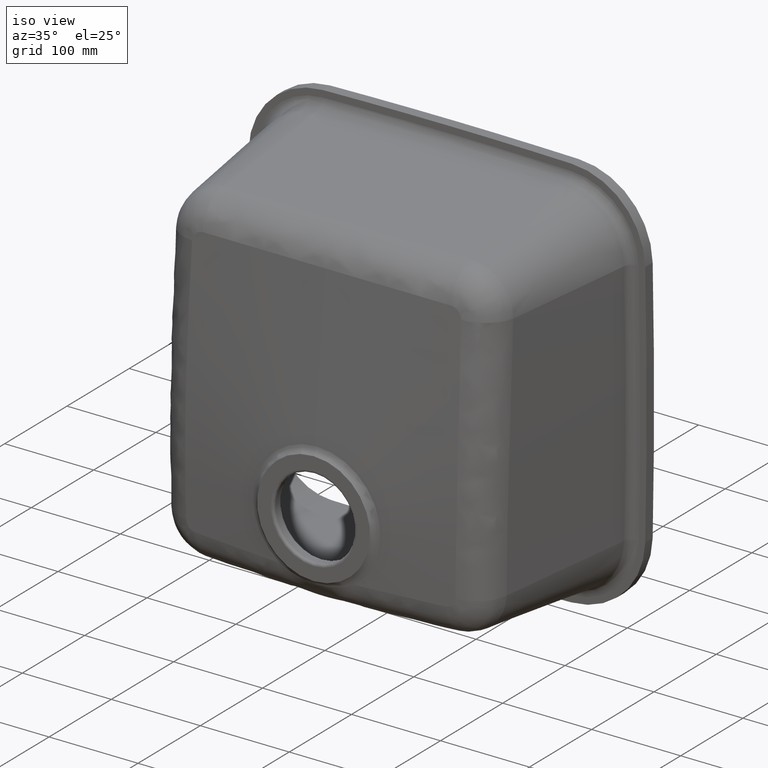
[diagram: clean part render]
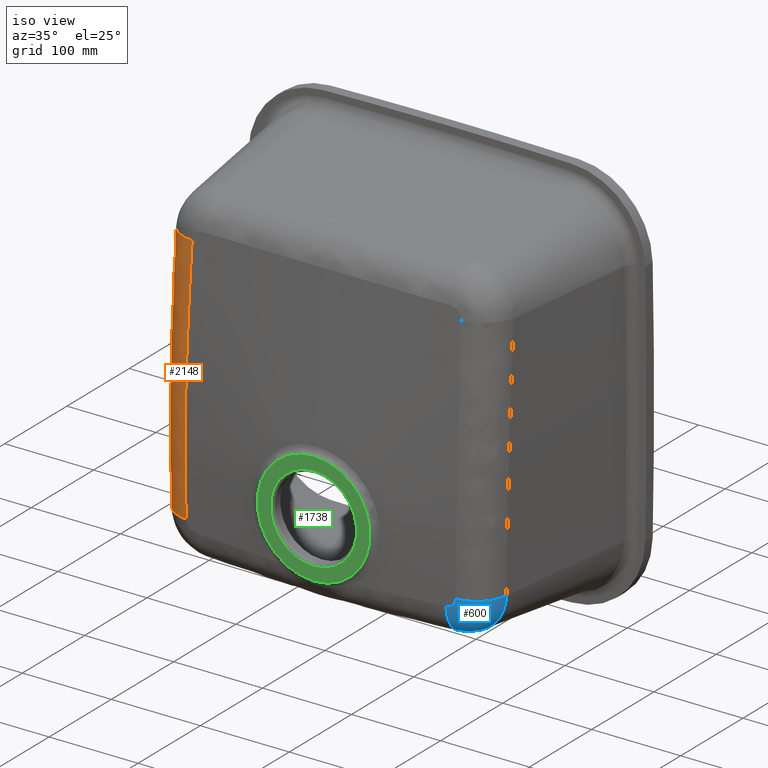
[diagram: same view with three faces highlighted in distinct colors, each labeled with its STEP entity id]
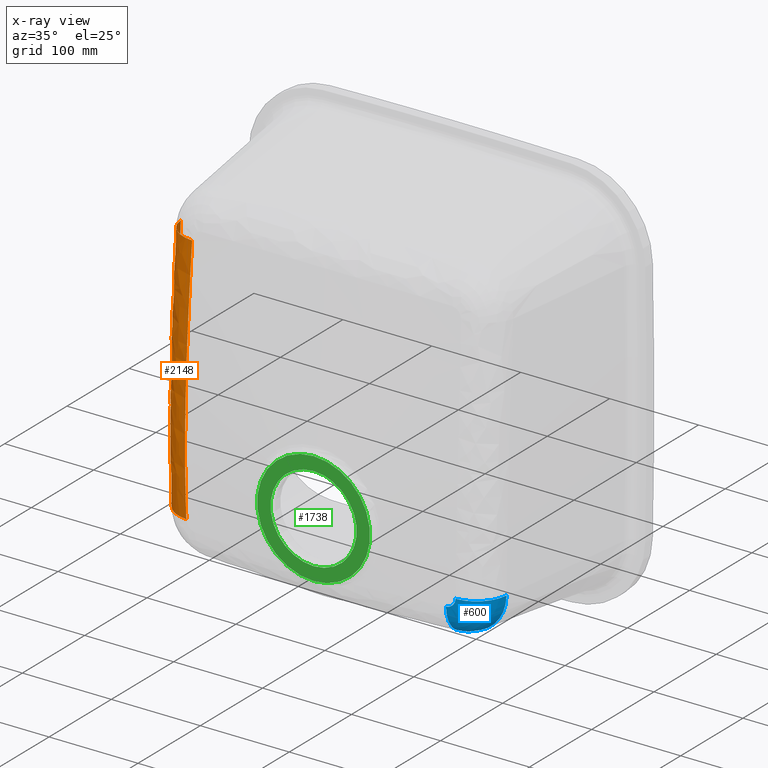
[diagram: x-ray of the same camera — body ghosted, the three highlighted faces saturated]
A machine part, iso view with three faces highlighted in distinct colors.
The next image is the same camera in x-ray (body ghosted, the three faces saturated) — at least one of them is partly hidden behind the body in this view.
Their STEP definitions:

[orange] entity #2148 — the highlighted face is a freeform B-spline surface patch.
#32 = CARTESIAN_POINT ( 'NONE',  ( -187.5743563083845200, 30.92775266842612300, 58.00879503683518800 ) ) ;
#48 = CARTESIAN_POINT ( 'NONE',  ( -183.7364447148914900, -0.2010617738536358800, 59.69597228035703300 ) ) ;
#55 = EDGE_CURVE ( 'NONE', #87, #2864, #3984, .T. ) ;
#62 = CARTESIAN_POINT ( 'NONE',  ( -183.7800137978819400, -1.774487397875437000, 24.73494431222878000 ) ) ;
#75 = CARTESIAN_POINT ( 'NONE',  ( -185.7389261621613600, 26.49171849676487500, -139.0273990174659100 ) ) ;
#87 = VERTEX_POINT ( 'NONE', #3403 ) ;
#111 = CARTESIAN_POINT ( 'NONE',  ( -187.5958677239214900, 30.31310923383868800, 46.42568339508223100 ) ) ;
#181 = EDGE_CURVE ( 'NONE', #3350, #87, #3826, .T. ) ;
#208 = EDGE_CURVE ( 'NONE', #1592, #2864, #2088, .T. ) ;
#238 = CARTESIAN_POINT ( 'NONE',  ( -182.8131256283199900, -4.454935792076641500, -92.53283628857678900 ) ) ;
#265 = CARTESIAN_POINT ( 'NONE',  ( -152.6806248011391200, -4.212458305339382900, 12.52530135758608900 ) ) ;
#288 = AXIS2_PLACEMENT_3D ( 'NONE', #1827, #4246, #3522 ) ;
#343 = CARTESIAN_POINT ( 'NONE',  ( -187.3547024027219000, 27.28998497724840900, -23.09639832334158900 ) ) ;
#360 = CARTESIAN_POINT ( 'NONE',  ( -187.0172036793991000, 26.37936773936181500, -57.86690492891452200 ) ) ;
#374 = CARTESIAN_POINT ( 'NONE',  ( -182.9640320669879300, 4.255976342103181800, 141.0011884517617200 ) ) ;
#386 = CARTESIAN_POINT ( 'NONE',  ( -186.8734489418232300, 35.73396161689549900, 139.0526955222250400 ) ) ;
#387 = DIRECTION ( 'NONE',  ( 0.0000000000000000000, -0.9979774490001981400, 0.06356894907938079300 ) ) ;
#395 = EDGE_LOOP ( 'NONE', ( #3558, #2527, #3212, #1463 ) ) ;
#429 = CARTESIAN_POINT ( 'NONE',  ( -182.2126006371083800, -4.261872752605792200, -127.8379817361188300 ) ) ;
#598 = CARTESIAN_POINT ( 'NONE',  ( -151.2683056474305400, -6.328805989477048800, -139.0224539532255500 ) ) ;
#670 = CARTESIAN_POINT ( 'NONE',  ( -187.4371811075902200, 27.69991734189614600, -11.50754730858637100 ) ) ;
#688 = CARTESIAN_POINT ( 'NONE',  ( -182.4283369080811200, -4.381096767862240800, -116.0672225511580700 ) ) ;
#693 = CARTESIAN_POINT ( 'NONE',  ( -183.3185671683494300, 2.874408283591764100, 117.8292420611823800 ) ) ;
#720 = CARTESIAN_POINT ( 'NONE',  ( -152.3630182668679300, -6.747888568608559900, -80.31722149993200300 ) ) ;
#736 = CARTESIAN_POINT ( 'NONE',  ( -187.1651366426326300, 26.53271523572930900, -46.27562477362150200 ) ) ;
#782 = CARTESIAN_POINT ( 'NONE',  ( -185.7389261621613100, 26.49171849676472900, -139.0273990174659100 ) ) ;
#798 = CARTESIAN_POINT ( 'NONE',  ( -181.9736138512943200, -4.065848008553684800, -139.5827359860888900 ) ) ;
#929 = CARTESIAN_POINT ( 'NONE',  ( -152.6289107257505000, -3.684147520991278800, 24.17923614360799100 ) ) ;
#943 = CARTESIAN_POINT ( 'NONE',  ( -152.6971077604123400, -6.301229511499257400, -45.74765434941471700 ) ) ;
#961 = CARTESIAN_POINT ( 'NONE',  ( -152.4774252376757000, -2.539646597831454000, 47.48017773236706800 ) ) ;
#1026 = CARTESIAN_POINT ( 'NONE',  ( -187.2095931622706100, 34.26819533472843900, 115.9033303767490400 ) ) ;
#1059 = CARTESIAN_POINT ( 'NONE',  ( -152.7294696076304800, -5.120607145268917500, -10.05974602956873900 ) ) ;
#1075 = CARTESIAN_POINT ( 'NONE',  ( -187.5848191194270400, 29.16907028972481100, 23.25695818822280000 ) ) ;
#1088 = CARTESIAN_POINT ( 'NONE',  ( -152.6579275067920800, -6.191098638054874000, -45.12863437879263300 ) ) ;
#1089 = DIRECTION ( 'NONE',  ( 0.01444321526507258100, 0.06356231828661060300, 0.9978733512960642500 ) ) ;
#1177 = B_SPLINE_CURVE_WITH_KNOTS ( 'NONE', 3,
 ( #4235, #1452, #2197, #3587, #4268, #736, #1476, #2904, #4223, #111, #3605, #2149, #1512, #2554 ),
 .UNSPECIFIED., .F., .F.,
 ( 4, 2, 2, 2, 2, 2, 4 ),
 ( 2.775557561562891400E-017, 0.03478186259173634400, 0.06956372518347266100, 0.1391274503669452700, 0.1739093129586815600, 0.2086911755504178300, 0.2782549007338903600 ),
 .UNSPECIFIED. ) ;
#1378 = CARTESIAN_POINT ( 'NONE',  ( -151.8029112023708600, -6.713211101419538800, -115.5563067198825700 ) ) ;
#1416 = CARTESIAN_POINT ( 'NONE',  ( -152.6779379064003000, -4.180962448037579500, 13.24589223165976100 ) ) ;
#1449 = CARTESIAN_POINT ( 'NONE',  ( -152.4724379116275900, -2.507369635751243800, 48.10238498532071100 ) ) ;
#1452 = CARTESIAN_POINT ( 'NONE',  ( -185.9683295692103400, 26.25413911844606600, -127.4302683493881100 ) ) ;
#1463 = ORIENTED_EDGE ( 'NONE', *, *, #4183, .F. ) ;
#1476 = CARTESIAN_POINT ( 'NONE',  ( -187.3796368636937800, 27.23006467124789200, -23.09665544798698600 ) ) ;
#1512 = CARTESIAN_POINT ( 'NONE',  ( -187.2095976757685800, 34.26817564856080600, 115.9030195168871600 ) ) ;
#1592 = VERTEX_POINT ( 'NONE', #75 ) ;
#1617 = CARTESIAN_POINT ( 'NONE',  ( -186.1764909639109100, 26.10731338428752600, -115.8340165197113000 ) ) ;
#1754 = AXIS2_PLACEMENT_3D ( 'NONE', #3158, #1089, #387 ) ;
#1765 = CARTESIAN_POINT ( 'NONE',  ( -152.5882724053306800, -6.441156746817031700, -56.84859302358181300 ) ) ;
#1777 = CARTESIAN_POINT ( 'NONE',  ( -183.3955716036311700, -3.953092866487901700, -45.49276420308802200 ) ) ;
#1827 = CARTESIAN_POINT ( 'NONE',  ( -148.5276942605364100, 31.06181887445777800, -138.1976985285541300 ) ) ;
#1836 = FACE_OUTER_BOUND ( 'NONE', #395, .T. ) ;
#1991 = CARTESIAN_POINT ( 'NONE',  ( -152.7545447943735400, -5.614507896651272900, -22.43675179534394800 ) ) ;
#2005 = CARTESIAN_POINT ( 'NONE',  ( -152.0062002441218600, 0.01856854072489701200, 94.06499091651615200 ) ) ;
#2088 = CIRCLE ( 'NONE', #288, 37.50000000000000000 ) ;
#2103 = CARTESIAN_POINT ( 'NONE',  ( -152.3721762029246100, -1.892771817181423000, 59.69589668044825700 ) ) ;
#2118 = CARTESIAN_POINT ( 'NONE',  ( -183.7690592489700200, -0.7555146611363207100, 48.05350196386076100 ) ) ;
#2144 = CARTESIAN_POINT ( 'NONE',  ( -152.6252590786091600, -3.651454196842216100, 24.87782859227187500 ) ) ;
#2148 = ADVANCED_FACE ( 'NONE', ( #1836 ), #2601, .T. ) ;
#2149 = CARTESIAN_POINT ( 'NONE',  ( -187.4241948071610900, 32.86151570701255100, 92.74934229242889200 ) ) ;
#2197 = CARTESIAN_POINT ( 'NONE',  ( -186.1764860072787000, 26.10731672528270100, -115.8342941050229900 ) ) ;
#2345 = CARTESIAN_POINT ( 'NONE',  ( -185.9683327412899700, 26.25413583470856700, -127.4301079975087600 ) ) ;
#2450 = CARTESIAN_POINT ( 'NONE',  ( -187.5958667266063200, 30.31315485016529400, 46.42656147247209500 ) ) ;
#2466 = CARTESIAN_POINT ( 'NONE',  ( -151.2149939643871600, 2.913437130653715000, 140.6271697582875500 ) ) ;
#2486 = CARTESIAN_POINT ( 'NONE',  ( -187.4241899967510400, 32.86154938228791200, 92.74990128849590600 ) ) ;
#2527 = ORIENTED_EDGE ( 'NONE', *, *, #55, .F. ) ;
#2529 = CARTESIAN_POINT ( 'NONE',  ( -151.5552099144104800, -6.566383347283114300, -127.2984219872917200 ) ) ;
#2545 = CARTESIAN_POINT ( 'NONE',  ( -151.2683056474305100, -6.328805989477052300, -139.0224539532255200 ) ) ;
#2554 = CARTESIAN_POINT ( 'NONE',  ( -186.8734489418234300, 35.73396161689565500, 139.0526955222250400 ) ) ;
#2601 =( BOUNDED_SURFACE ( )  B_SPLINE_SURFACE ( 3, 2, ( 
 ( #2545, #798, #782 ),
 ( #2529, #429, #2345 ),
 ( #1378, #688, #1617 ),
 ( #2672, #238, #4174 ),
 ( #720, #2826, #3535 ),
 ( #1765, #4497, #360 ),
 ( #1088, #1777, #2773 ),
 ( #3865, #3122, #343 ),
 ( #1059, #2810, #670 ),
 ( #1416, #3505, #4188 ),
 ( #2144, #62, #1075 ),
 ( #1449, #2118, #2450 ),
 ( #2103, #48, #32 ),
 ( #3849, #2791, #2486 ),
 ( #3139, #693, #1026 ),
 ( #2466, #374, #386 ) ),
 .UNSPECIFIED., .F., .F., .F. ) 
 B_SPLINE_SURFACE_WITH_KNOTS ( ( 4, 2, 2, 2, 2, 2, 2, 4 ),
 ( 3, 3 ),
 ( -2.775557561562891400E-017, 0.03457455127938133900, 0.06914910255876270700, 0.1037236538381440800, 0.1382982051175254400, 0.1728727563969068000, 0.2074473076762881900, 0.2765964102350509400 ),
 ( 0.0000000000000000000, 1.000000000000000000 ),
 .UNSPECIFIED. ) 
 GEOMETRIC_REPRESENTATION_ITEM ( )  RATIONAL_B_SPLINE_SURFACE ( (
 ( 1.000000000000000000, 0.7728262095076760000, 1.000000000000000000),
 ( 1.000000000000000000, 0.7732841320742937000, 1.000000000000000000),
 ( 1.000000000000000000, 0.7735880053117538700, 1.000000000000000000),
 ( 1.000000000000000000, 0.7737755962668275700, 1.000000000000000000),
 ( 1.000000000000000000, 0.7736555283987307500, 1.000000000000000000),
 ( 1.000000000000000000, 0.7730398187134872600, 1.000000000000000000),
 ( 1.000000000000000000, 0.7725488966003883900, 1.000000000000000000),
 ( 1.000000000000000000, 0.7713757871157800300, 1.000000000000000000),
 ( 1.000000000000000000, 0.7706973017914157100, 1.000000000000000000),
 ( 1.000000000000000000, 0.7693139138124344100, 1.000000000000000000),
 ( 1.000000000000000000, 0.7686091502504927000, 1.000000000000000000),
 ( 1.000000000000000000, 0.7672588517195023700, 1.000000000000000000),
 ( 1.000000000000000000, 0.7666122715457474000, 1.000000000000000000),
 ( 1.000000000000000000, 0.7648020810281736000, 1.000000000000000000),
 ( 1.000000000000000000, 0.7637680188626687600, 1.000000000000000000),
 ( 1.000000000000000000, 0.7628960950891331400, 1.000000000000000000) ) ) 
 REPRESENTATION_ITEM ( '' )  SURFACE ( )  );
#2672 = CARTESIAN_POINT ( 'NONE',  ( -152.2069118035764500, -6.804046946961730000, -92.06542262718187400 ) ) ;
#2686 = CARTESIAN_POINT ( 'NONE',  ( -151.6630723743481300, 1.435248066217450500, 117.3484213295014500 ) ) ;
#2773 = CARTESIAN_POINT ( 'NONE',  ( -187.1446788779121800, 26.62942584848183000, -46.27607227657062300 ) ) ;
#2791 = CARTESIAN_POINT ( 'NONE',  ( -183.5537754736070300, 1.565136499321991400, 94.62005438506180600 ) ) ;
#2810 = CARTESIAN_POINT ( 'NONE',  ( -183.6637306277731100, -3.051534308648294700, -10.32556639709192600 ) ) ;
#2826 = CARTESIAN_POINT ( 'NONE',  ( -182.9823711116270600, -4.409594269142340700, -80.75799211899909800 ) ) ;
#2864 = VERTEX_POINT ( 'NONE', #4097 ) ;
#2904 = CARTESIAN_POINT ( 'NONE',  ( -187.5522519168529000, 28.63952063650758400, 11.66791444853999200 ) ) ;
#3030 = CARTESIAN_POINT ( 'NONE',  ( -151.2149939643872800, 2.913437130653739000, 140.6271697582875500 ) ) ;
#3122 = CARTESIAN_POINT ( 'NONE',  ( -183.5906783622512000, -3.399535735787674100, -22.03706542761487000 ) ) ;
#3139 = CARTESIAN_POINT ( 'NONE',  ( -151.6593170097199600, 1.447636876355449900, 117.5435222059249300 ) ) ;
#3158 = CARTESIAN_POINT ( 'NONE',  ( -149.6622170401985000, 40.30406199458861500, 138.2229950333132500 ) ) ;
#3212 = ORIENTED_EDGE ( 'NONE', *, *, #181, .F. ) ;
#3350 = VERTEX_POINT ( 'NONE', #4464 ) ;
#3377 = CARTESIAN_POINT ( 'NONE',  ( -152.3775399498863100, -1.923462374837511500, 59.12790179550104600 ) ) ;
#3403 = CARTESIAN_POINT ( 'NONE',  ( -151.2149939643872800, 2.913437130653739000, 140.6271697582875500 ) ) ;
#3404 = CARTESIAN_POINT ( 'NONE',  ( -152.3579662446025500, -6.750501160783591600, -80.72069703362953400 ) ) ;
#3505 = CARTESIAN_POINT ( 'NONE',  ( -183.7584496585127200, -2.239035722097859600, 13.05938897455788200 ) ) ;
#3522 = DIRECTION ( 'NONE',  ( 0.0000000000000000000, -0.9997877014874190200, -0.02060465856313624000 ) ) ;
#3535 = CARTESIAN_POINT ( 'NONE',  ( -186.7213198019796900, 26.07263591769615700, -81.05112187286850700 ) ) ;
#3558 = ORIENTED_EDGE ( 'NONE', *, *, #208, .T. ) ;
#3587 = CARTESIAN_POINT ( 'NONE',  ( -186.5529661916856100, 26.01647726023540100, -92.64501889409999100 ) ) ;
#3605 = CARTESIAN_POINT ( 'NONE',  ( -187.5743586323667400, 30.92770860434452000, 58.00798042027649600 ) ) ;
#3733 = CARTESIAN_POINT ( 'NONE',  ( -152.2020860851561700, -6.804111071494834700, -92.37947688097362700 ) ) ;
#3826 = CIRCLE ( 'NONE', #1754, 37.49999999999999300 ) ;
#3849 = CARTESIAN_POINT ( 'NONE',  ( -152.0008634462450300, 0.04102489477764452400, 94.43617848404925000 ) ) ;
#3865 = CARTESIAN_POINT ( 'NONE',  ( -152.7283337227174200, -5.530539508698449700, -21.73434652539342300 ) ) ;
#3984 = B_SPLINE_CURVE_WITH_KNOTS ( 'NONE', 3,
 ( #3030, #2686, #2005, #3377, #961, #929, #265, #1991, #943, #3404, #3733, #4069, #4411, #598 ),
 .UNSPECIFIED., .F., .F.,
 ( 4, 2, 2, 2, 2, 2, 4 ),
 ( 0.0000000000000000000, 0.06998593435459037100, 0.1049789015318855500, 0.1399718687091807400, 0.2099578030637711000, 0.2449507702410662900, 0.2799437374183614800 ),
 .UNSPECIFIED. ) ;
#4069 = CARTESIAN_POINT ( 'NONE',  ( -151.7998649641994600, -6.711354292948883000, -115.6993103131889900 ) ) ;
#4097 = CARTESIAN_POINT ( 'NONE',  ( -151.2683056474305400, -6.328805989477048800, -139.0224539532255500 ) ) ;
#4174 = CARTESIAN_POINT ( 'NONE',  ( -186.5529739232569000, 26.01647753981477300, -92.64451494933011600 ) ) ;
#4183 = EDGE_CURVE ( 'NONE', #1592, #3350, #1177, .T. ) ;
#4188 = CARTESIAN_POINT ( 'NONE',  ( -187.5522552600531600, 28.63956203728092100, 11.66885643031063700 ) ) ;
#4223 = CARTESIAN_POINT ( 'NONE',  ( -187.5848172525910200, 29.16902587040599600, 23.25601289138160900 ) ) ;
#4235 = CARTESIAN_POINT ( 'NONE',  ( -185.7389261621613600, 26.49171849676487500, -139.0273990174659100 ) ) ;
#4246 = DIRECTION ( 'NONE',  ( -0.01975789036449615900, -0.02060063640668372000, 0.9995925367608464700 ) ) ;
#4268 = CARTESIAN_POINT ( 'NONE',  ( -186.7213113599878800, 26.07263172135678900, -81.05172083112344700 ) ) ;
#4411 = CARTESIAN_POINT ( 'NONE',  ( -151.5536941148482400, -6.565128162117776600, -127.3603632291004100 ) ) ;
#4464 = CARTESIAN_POINT ( 'NONE',  ( -186.8734489418234300, 35.73396161689565500, 139.0526955222250400 ) ) ;
#4497 = CARTESIAN_POINT ( 'NONE',  ( -183.2735482278163800, -4.158721596000289000, -57.24294477871342900 ) ) ;

[blue] entity #600 — the highlighted face is a freeform B-spline surface patch.
#27 = CARTESIAN_POINT ( 'NONE',  ( 151.2683056474308800, -6.328805989477025700, -139.0224539532254900 ) ) ;
#118 = VERTEX_POINT ( 'NONE', #4001 ) ;
#140 = CARTESIAN_POINT ( 'NONE',  ( 147.1624418302816900, -6.427492143514398600, -147.2796317869448000 ) ) ;
#145 = CARTESIAN_POINT ( 'NONE',  ( 151.1246397599709900, 26.18329368310872200, -183.9652786392965100 ) ) ;
#163 = CARTESIAN_POINT ( 'NONE',  ( 149.2408713494971300, -6.333838078750144300, -145.0839003470732400 ) ) ;
#175 = CARTESIAN_POINT ( 'NONE',  ( 158.1009491983684000, -4.836693624636404300, -177.0772843713706900 ) ) ;
#191 = CARTESIAN_POINT ( 'NONE',  ( 177.5187652646397700, -3.980589290387849000, -157.5225993412894400 ) ) ;
#204 = CARTESIAN_POINT ( 'NONE',  ( 179.5374803937040400, -3.953279097606862800, -152.5808142649231300 ) ) ;
#274 = CARTESIAN_POINT ( 'NONE',  ( 176.7244814873724300, 26.48660804962851100, -165.9526813519674400 ) ) ;
#291 = CARTESIAN_POINT ( 'NONE',  ( 145.1202499054627100, 26.09652534142221100, -185.2618825369675300 ) ) ;
#462 = CARTESIAN_POINT ( 'NONE',  ( 149.8230681759375200, -6.313312571174688700, -144.2135438303310200 ) ) ;
#476 = CARTESIAN_POINT ( 'NONE',  ( 151.2683056474308800, -6.328805989477025700, -139.0224539532254900 ) ) ;
#479 = CARTESIAN_POINT ( 'NONE',  ( 146.6603305738403000, -5.519780794444366200, -181.0889391745261600 ) ) ;
#481 = EDGE_CURVE ( 'NONE', #118, #1097, #1434, .T. ) ;
#495 = CARTESIAN_POINT ( 'NONE',  ( 172.8514085927189100, 26.45076291681558100, -170.6470963884739300 ) ) ;
#511 = CARTESIAN_POINT ( 'NONE',  ( 151.9418954592840700, -5.191612142132978400, -179.7100288982281000 ) ) ;
#525 = CARTESIAN_POINT ( 'NONE',  ( 179.2754349464340700, 26.50683344006023000, -162.1760019427872000 ) ) ;
#535 = CARTESIAN_POINT ( 'NONE',  ( 182.5137687807096500, 26.52244597655875000, -155.3282464465422100 ) ) ;
#593 = CARTESIAN_POINT ( 'NONE',  ( 185.3143174809506800, 26.51493669318370600, -145.0990484168896400 ) ) ;
#600 = ADVANCED_FACE ( 'NONE', ( #1094 ), #780, .T. ) ;
#626 = CARTESIAN_POINT ( 'NONE',  ( 142.0894767665914200, 26.05103389793175600, -185.6165281649900000 ) ) ;
#673 = CARTESIAN_POINT ( 'NONE',  ( 139.0260622341128600, 26.00331597425118000, -185.6789727741995600 ) ) ;
#780 =( BOUNDED_SURFACE ( )  B_SPLINE_SURFACE ( 3, 2, ( 
 ( #1830, #4251, #3588 ),
 ( #1497, #3924, #1859 ),
 ( #3298, #837, #3283 ),
 ( #4352, #1187, #1923 ),
 ( #1200, #3633, #4344 ),
 ( #2283, #204, #1544 ),
 ( #1575, #2633, #535 ),
 ( #3971, #191, #2271 ),
 ( #2622, #1892, #525 ),
 ( #163, #2996, #2231 ),
 ( #2979, #4318, #2241 ),
 ( #892, #1939, #4002 ),
 ( #1225, #2597, #495 ),
 ( #2954, #1237, #3676 ),
 ( #877, #3650, #1561 ),
 ( #3336, #852, #3983 ),
 ( #1585, #3693, #1912 ),
 ( #3324, #1596, #4330 ),
 ( #4014, #175, #2967 ),
 ( #2257, #2614, #4025 ),
 ( #1954, #511, #145 ),
 ( #2582, #479, #866 ),
 ( #2938, #3314, #1211 ),
 ( #3662, #1281, #4084 ) ),
 .UNSPECIFIED., .F., .F., .T. ) 
 B_SPLINE_SURFACE_WITH_KNOTS ( ( 4, 2, 2, 2, 2, 2, 2, 2, 2, 2, 2, 4 ),
 ( 3, 3 ),
 ( -4.202367620553815200E-016, 0.002003958670319044300, 0.003005938005478776400, 0.004007917340638508400, 0.006011876010957972600, 0.007013855346117705100, 0.008015834681277436700, 0.01001979335159690000, 0.01102177268675663300, 0.01202375202191636500, 0.01402771069223583000, 0.01603166936255529300 ),
 ( 0.0000000000000000000, 1.000000000000000000 ),
 .UNSPECIFIED. ) 
 GEOMETRIC_REPRESENTATION_ITEM ( )  RATIONAL_B_SPLINE_SURFACE ( (
 ( 1.000000000000000000, 0.7728262095076758900, 1.000000000000000000),
 ( 1.000000000000000000, 0.7732172026876356100, 1.000000000000000000),
 ( 1.000000000000000000, 0.7734761745786833400, 1.000000000000000000),
 ( 1.000000000000000000, 0.7736757888055396700, 1.000000000000000000),
 ( 1.000000000000000000, 0.7737107233793617500, 1.000000000000000000),
 ( 1.000000000000000000, 0.7737162146931487700, 1.000000000000000000),
 ( 1.000000000000000000, 0.7736862508611807000, 1.000000000000000000),
 ( 1.000000000000000000, 0.7735002001252162500, 1.000000000000000000),
 ( 1.000000000000000000, 0.7732500690042110000, 1.000000000000000000),
 ( 1.000000000000000000, 0.7726851049207573700, 1.000000000000000000),
 ( 1.000000000000000000, 0.7724649121480846600, 1.000000000000000000),
 ( 1.000000000000000000, 0.7719575474980093800, 1.000000000000000000),
 ( 1.000000000000000000, 0.7716744290765768000, 1.000000000000000000),
 ( 1.000000000000000000, 0.7707385324129479900, 1.000000000000000000),
 ( 1.000000000000000000, 0.7699998889220272000, 1.000000000000000000),
 ( 1.000000000000000000, 0.7687086067309505400, 1.000000000000000000),
 ( 1.000000000000000000, 0.7682450768153774600, 1.000000000000000000),
 ( 1.000000000000000000, 0.7672725372896058700, 1.000000000000000000),
 ( 1.000000000000000000, 0.7667620438476604500, 1.000000000000000000),
 ( 1.000000000000000000, 0.7651567487443697900, 1.000000000000000000),
 ( 1.000000000000000000, 0.7639888885002645800, 1.000000000000000000),
 ( 1.000000000000000000, 0.7614347576576412400, 1.000000000000000000),
 ( 1.000000000000000000, 0.7600788285408576200, 1.000000000000000000),
 ( 1.000000000000000000, 0.7586412035490771600, 1.000000000000000000) ) ) 
 REPRESENTATION_ITEM ( '' )  SURFACE ( )  );
#787 = CARTESIAN_POINT ( 'NONE',  ( 151.1703082479411600, -6.305677359900481200, -140.3822213115042800 ) ) ;
#819 = AXIS2_PLACEMENT_3D ( 'NONE', #2555, #4236, #2905 ) ;
#820 = CARTESIAN_POINT ( 'NONE',  ( 144.1993092475665600, -6.595640068145062400, -148.9252296882777100 ) ) ;
#833 = CARTESIAN_POINT ( 'NONE',  ( 150.6633703622992200, -6.296979005863792400, -142.3528371398425100 ) ) ;
#837 = CARTESIAN_POINT ( 'NONE',  ( 181.5418534725472700, -3.983627331550943400, -144.8923113109237900 ) ) ;
#852 = CARTESIAN_POINT ( 'NONE',  ( 162.7363758670811100, -4.588511652223228800, -174.3456971475268900 ) ) ;
#866 = CARTESIAN_POINT ( 'NONE',  ( 145.1302446037875900, 26.09667464312908100, -185.2605867064784500 ) ) ;
#877 = CARTESIAN_POINT ( 'NONE',  ( 147.1343244355076600, -6.428934643353348300, -147.3016438530415000 ) ) ;
#892 = CARTESIAN_POINT ( 'NONE',  ( 148.6010251044040200, -6.359715132033416700, -145.8910086416947800 ) ) ;
#957 = CARTESIAN_POINT ( 'NONE',  ( 153.9938431309987000, 26.22307388024385200, -183.0478601707448500 ) ) ;
#999 = CARTESIAN_POINT ( 'NONE',  ( 167.2943467255302000, 26.39140343881391700, -175.7967693709479400 ) ) ;
#1055 = VERTEX_POINT ( 'NONE', #3397 ) ;
#1094 = FACE_OUTER_BOUND ( 'NONE', #3722, .T. ) ;
#1097 = VERTEX_POINT ( 'NONE', #673 ) ;
#1141 = CARTESIAN_POINT ( 'NONE',  ( 149.0696995255825400, -6.339825131352033500, -145.3419481462079800 ) ) ;
#1187 = CARTESIAN_POINT ( 'NONE',  ( 180.6874456399527800, -3.958389541856611100, -148.7650311480414000 ) ) ;
#1200 = CARTESIAN_POINT ( 'NONE',  ( 150.8657104575252700, -6.297201895354762200, -141.7148017034853100 ) ) ;
#1211 = CARTESIAN_POINT ( 'NONE',  ( 142.0939923743323400, 26.05110423588741900, -185.6164361188454300 ) ) ;
#1225 = CARTESIAN_POINT ( 'NONE',  ( 148.3720843223347000, -6.369761569370095500, -146.1445921257126800 ) ) ;
#1237 = CARTESIAN_POINT ( 'NONE',  ( 167.9992704324462800, -4.330481057679630700, -170.2506118429285500 ) ) ;
#1281 = CARTESIAN_POINT ( 'NONE',  ( 141.2275153968180300, -5.880159582544026300, -181.7141153128896500 ) ) ;
#1295 = B_SPLINE_CURVE_WITH_KNOTS ( 'NONE', 3,
 ( #1857, #4265, #4297, #4283, #820, #2228, #2887, #2901, #2191, #140, #1529, #2238, #1141, #462, #3235, #3600, #833, #4315, #3583, #787, #2576, #476 ),
 .UNSPECIFIED., .F., .F.,
 ( 4, 2, 2, 2, 2, 2, 2, 2, 2, 2, 4 ),
 ( 0.0000000000000000000, 0.002050238688620664600, 0.004100477377241329300, 0.005125596721551700000, 0.006150716065862069800, 0.008200954754482833700, 0.01025119344310359600, 0.01230143213172435800, 0.01332655147603479400, 0.01435167082034523100, 0.01640190950896620500 ),
 .UNSPECIFIED. ) ;
#1318 = CARTESIAN_POINT ( 'NONE',  ( 185.7389261621615900, 26.49171849676471200, -139.0273990174658800 ) ) ;
#1333 = CARTESIAN_POINT ( 'NONE',  ( 180.7164881103704800, 26.51576003482003700, -159.5344629618016100 ) ) ;
#1353 = CARTESIAN_POINT ( 'NONE',  ( 169.6247985259320500, 26.41747749088578300, -173.8722685120536900 ) ) ;
#1370 = CARTESIAN_POINT ( 'NONE',  ( 162.1994262307861700, 26.32998428164379200, -179.1534860095156300 ) ) ;
#1434 = CIRCLE ( 'NONE', #819, 37.50000000000000000 ) ;
#1497 = CARTESIAN_POINT ( 'NONE',  ( 151.2514492971950200, -6.314847720350560000, -139.7112704108823200 ) ) ;
#1529 = CARTESIAN_POINT ( 'NONE',  ( 147.6805867376990000, -6.401603025550720400, -146.8446089535219100 ) ) ;
#1544 = CARTESIAN_POINT ( 'NONE',  ( 183.0492680011779800, 26.52351922993516500, -153.8867251292180400 ) ) ;
#1561 = CARTESIAN_POINT ( 'NONE',  ( 167.3106236728035600, 26.39158984309542400, -175.7841554484080300 ) ) ;
#1575 = CARTESIAN_POINT ( 'NONE',  ( 150.5376661924683200, -6.298078509584146700, -142.6926040592532800 ) ) ;
#1585 = CARTESIAN_POINT ( 'NONE',  ( 145.9990680613977400, -6.490319055717717900, -148.0575899154050600 ) ) ;
#1596 = CARTESIAN_POINT ( 'NONE',  ( 159.2848735715449500, -4.771535532880062800, -176.4516856802711100 ) ) ;
#1611 = CIRCLE ( 'NONE', #2046, 37.50000000000000000 ) ;
#1655 = CARTESIAN_POINT ( 'NONE',  ( 139.0260622341128600, 26.00331597425118000, -185.6789727741995600 ) ) ;
#1793 = ORIENTED_EDGE ( 'NONE', *, *, #2512, .F. ) ;
#1830 = CARTESIAN_POINT ( 'NONE',  ( 151.2683056474306500, -6.328805989477034500, -139.0224539532259200 ) ) ;
#1857 = CARTESIAN_POINT ( 'NONE',  ( 140.8557402363386200, -6.817208511990674700, -149.5255113228015800 ) ) ;
#1859 = CARTESIAN_POINT ( 'NONE',  ( 185.6723555444793300, 26.50567671985255600, -142.0899079673446600 ) ) ;
#1872 = ORIENTED_EDGE ( 'NONE', *, *, #481, .T. ) ;
#1892 = CARTESIAN_POINT ( 'NONE',  ( 176.2734899477469800, -4.012231143524704000, -159.8549027682492700 ) ) ;
#1912 = CARTESIAN_POINT ( 'NONE',  ( 162.2172112206827400, 26.33020543042948000, -179.1430608789846100 ) ) ;
#1923 = CARTESIAN_POINT ( 'NONE',  ( 184.3592426506327500, 26.52207134825796000, -149.5250873241438400 ) ) ;
#1939 = CARTESIAN_POINT ( 'NONE',  ( 171.6374211368573100, -4.175857136042943700, -166.3631202991624600 ) ) ;
#1943 = CARTESIAN_POINT ( 'NONE',  ( 159.5267508177559000, 26.29616122781505900, -180.6088737495293800 ) ) ;
#1954 = CARTESIAN_POINT ( 'NONE',  ( 143.5330908633479200, -6.637230803425885600, -149.1415544118637800 ) ) ;
#2029 = CARTESIAN_POINT ( 'NONE',  ( 172.8390872970318000, 26.45063999304019800, -170.6602443577920100 ) ) ;
#2046 = AXIS2_PLACEMENT_3D ( 'NONE', #4364, #2290, #3002 ) ;
#2083 = VERTEX_POINT ( 'NONE', #27 ) ;
#2191 = CARTESIAN_POINT ( 'NONE',  ( 146.3213255606793600, -6.472524953349267000, -147.8586073924178400 ) ) ;
#2228 = CARTESIAN_POINT ( 'NONE',  ( 145.1291404449891900, -6.540155378760014800, -148.5204476767768000 ) ) ;
#2231 = CARTESIAN_POINT ( 'NONE',  ( 176.7338301720096200, 26.48668640743086300, -165.9397013272573200 ) ) ;
#2238 = CARTESIAN_POINT ( 'NONE',  ( 148.6331981930662200, -6.357783842500463600, -145.8782440636603900 ) ) ;
#2241 = CARTESIAN_POINT ( 'NONE',  ( 175.8241284610903400, 26.47884321589507200, -167.1583696587178500 ) ) ;
#2250 = ORIENTED_EDGE ( 'NONE', *, *, #3818, .F. ) ;
#2257 = CARTESIAN_POINT ( 'NONE',  ( 144.1737339581508800, -6.597219109113624700, -148.9342391584186800 ) ) ;
#2271 = CARTESIAN_POINT ( 'NONE',  ( 180.7215306260255300, 26.51578660073598900, -159.5242614536222700 ) ) ;
#2283 = CARTESIAN_POINT ( 'NONE',  ( 150.6581574450646300, -6.297005256206941400, -142.3678120846560100 ) ) ;
#2286 = CARTESIAN_POINT ( 'NONE',  ( 185.6723302681178600, 26.50568202035215700, -142.0910707825731300 ) ) ;
#2290 = DIRECTION ( 'NONE',  ( 0.01975789036449689800, -0.02060063640668366800, 0.9995925367608464700 ) ) ;
#2374 = CARTESIAN_POINT ( 'NONE',  ( 151.1089881275171100, 26.18307237436234300, -183.9695209437648200 ) ) ;
#2512 = EDGE_CURVE ( 'NONE', #1055, #1097, #3191, .T. ) ;
#2555 = CARTESIAN_POINT ( 'NONE',  ( 138.1963617452010200, 30.57341635194415000, -148.4677408725746100 ) ) ;
#2576 = CARTESIAN_POINT ( 'NONE',  ( 151.2515167219312400, -6.314903551911042400, -139.7085152159898800 ) ) ;
#2582 = CARTESIAN_POINT ( 'NONE',  ( 142.2048052896073200, -6.723849842819876500, -149.4320934540868700 ) ) ;
#2597 = CARTESIAN_POINT ( 'NONE',  ( 170.7587943726702500, -4.211741761567827400, -167.3682136423832700 ) ) ;
#2614 = CARTESIAN_POINT ( 'NONE',  ( 154.4679104401375300, -5.041968355266024400, -178.7894083331652600 ) ) ;
#2622 = CARTESIAN_POINT ( 'NONE',  ( 149.8103453997937000, -6.313691046303083500, -144.2357309187257500 ) ) ;
#2633 = CARTESIAN_POINT ( 'NONE',  ( 179.0715054573582800, -3.957066995204918200, -153.8432018167264300 ) ) ;
#2887 = CARTESIAN_POINT ( 'NONE',  ( 145.4330842392633100, -6.522457968346848200, -148.3704859766702100 ) ) ;
#2901 = CARTESIAN_POINT ( 'NONE',  ( 146.0287540736529200, -6.488663128921548000, -148.0399515066997900 ) ) ;
#2905 = DIRECTION ( 'NONE',  ( -0.07056287577754820400, 0.9975073335880805200, 0.0000000000000000000 ) ) ;
#2938 = CARTESIAN_POINT ( 'NONE',  ( 141.5331328490378300, -6.769420210197775800, -149.5117003120649600 ) ) ;
#2954 = CARTESIAN_POINT ( 'NONE',  ( 147.6542138135972100, -6.402887956681961000, -146.8682006555024800 ) ) ;
#2967 = CARTESIAN_POINT ( 'NONE',  ( 158.1810655053922400, 26.27870076731075200, -181.2603658541211200 ) ) ;
#2979 = CARTESIAN_POINT ( 'NONE',  ( 149.0371668135474300, -6.341681270490802500, -145.3585229363570200 ) ) ;
#2996 = CARTESIAN_POINT ( 'NONE',  ( 174.0909287698774500, -4.083710560796569100, -163.1807257295130300 ) ) ;
#3002 = DIRECTION ( 'NONE',  ( 0.0000000000000000000, -0.9997877014874190200, -0.02060465856313624000 ) ) ;
#3056 = CARTESIAN_POINT ( 'NONE',  ( 184.3578389326266300, 26.52207821029616500, -149.5308498297518400 ) ) ;
#3098 = CARTESIAN_POINT ( 'NONE',  ( 173.8633964935502800, 26.46069666345622200, -169.5348869518779500 ) ) ;
#3191 = B_SPLINE_CURVE_WITH_KNOTS ( 'NONE', 3,
 ( #1318, #2286, #593, #3056, #3791, #3747, #3463, #1333, #4096, #274, #3401, #3098, #2029, #1353, #999, #4434, #1370, #1943, #4358, #957, #2374, #291, #626, #1655 ),
 .UNSPECIFIED., .F., .F.,
 ( 4, 2, 2, 2, 2, 2, 2, 2, 2, 2, 2, 4 ),
 ( 2.775557561562891400E-017, 0.009065147892586345900, 0.01359772183887950400, 0.01813029578517266400, 0.02719544367775898100, 0.03172801762405215400, 0.03626059157034532800, 0.04532573946293166900, 0.04985831340922480100, 0.05439088735551793300, 0.06345603524810410100, 0.07252118314069026800 ),
 .UNSPECIFIED. ) ;
#3235 = CARTESIAN_POINT ( 'NONE',  ( 150.1448265437343000, -6.304505881835552800, -143.6177396458408600 ) ) ;
#3283 = CARTESIAN_POINT ( 'NONE',  ( 185.3146414635466200, 26.51492701880478700, -145.0960604863793200 ) ) ;
#3298 = CARTESIAN_POINT ( 'NONE',  ( 151.1696468789648700, -6.305597467473382300, -140.3879242017461300 ) ) ;
#3314 = CARTESIAN_POINT ( 'NONE',  ( 143.9664000715494000, -5.694547408213857400, -181.5289003559440700 ) ) ;
#3324 = CARTESIAN_POINT ( 'NONE',  ( 145.4040833386592900, -6.524134532210823100, -148.3852916074688700 ) ) ;
#3336 = CARTESIAN_POINT ( 'NONE',  ( 146.2917876711978500, -6.474140343760884900, -147.8775047186730400 ) ) ;
#3397 = CARTESIAN_POINT ( 'NONE',  ( 185.7389261621615900, 26.49171849676471200, -139.0273990174658800 ) ) ;
#3401 = CARTESIAN_POINT ( 'NONE',  ( 175.8139102183918700, 26.47875296265842600, -167.1716241493616300 ) ) ;
#3463 = CARTESIAN_POINT ( 'NONE',  ( 182.5104793629060700, 26.52243764993615100, -155.3367458425342400 ) ) ;
#3525 = ORIENTED_EDGE ( 'NONE', *, *, #3724, .F. ) ;
#3583 = CARTESIAN_POINT ( 'NONE',  ( 150.9559683994905900, -6.298507484629289400, -141.3750340547978800 ) ) ;
#3588 = CARTESIAN_POINT ( 'NONE',  ( 185.7389261621614800, 26.49171849676474700, -139.0273990174659700 ) ) ;
#3600 = CARTESIAN_POINT ( 'NONE',  ( 150.5440436593051700, -6.298008042267770900, -142.6760376319467700 ) ) ;
#3633 = CARTESIAN_POINT ( 'NONE',  ( 180.3440929715865200, -3.953973220366748800, -150.0443495360205800 ) ) ;
#3650 = CARTESIAN_POINT ( 'NONE',  ( 165.9960977396707400, -4.424314785800536500, -171.9952922929931600 ) ) ;
#3662 = CARTESIAN_POINT ( 'NONE',  ( 140.8557402363386200, -6.817208511990673800, -149.5255113228015800 ) ) ;
#3676 = CARTESIAN_POINT ( 'NONE',  ( 169.6394071156155700, 26.41763652967203800, -173.8593257075962700 ) ) ;
#3693 = CARTESIAN_POINT ( 'NONE',  ( 161.6004486324276000, -4.647547150472705700, -175.0876489569542100 ) ) ;
#3722 = EDGE_LOOP ( 'NONE', ( #1872, #1793, #2250, #3525 ) ) ;
#3724 = EDGE_CURVE ( 'NONE', #118, #2083, #1295, .T. ) ;
#3747 = CARTESIAN_POINT ( 'NONE',  ( 183.0464359077494100, 26.52351584986464400, -153.8948198000218800 ) ) ;
#3791 = CARTESIAN_POINT ( 'NONE',  ( 183.9686098523425500, 26.52332695155067200, -150.9946619081274800 ) ) ;
#3818 = EDGE_CURVE ( 'NONE', #2083, #1055, #1611, .T. ) ;
#3924 = CARTESIAN_POINT ( 'NONE',  ( 181.8789610357206900, -4.016324186380333400, -142.2637038568076400 ) ) ;
#3971 = CARTESIAN_POINT ( 'NONE',  ( 150.1348475176282300, -6.304737885703548100, -143.6381003450874500 ) ) ;
#3983 = CARTESIAN_POINT ( 'NONE',  ( 163.5311568851995800, 26.34638414237740300, -178.3427038107309700 ) ) ;
#4001 = CARTESIAN_POINT ( 'NONE',  ( 140.8557402363386200, -6.817208511990674700, -149.5255113228015800 ) ) ;
#4002 = CARTESIAN_POINT ( 'NONE',  ( 173.8751063005461800, 26.46080935406428800, -169.5215634128436800 ) ) ;
#4014 = CARTESIAN_POINT ( 'NONE',  ( 145.1007673322905600, -6.541823718916052000, -148.5337921523690700 ) ) ;
#4025 = CARTESIAN_POINT ( 'NONE',  ( 154.0107375227806300, 26.22330537715811600, -183.0419521430802400 ) ) ;
#4084 = CARTESIAN_POINT ( 'NONE',  ( 139.0260622341128900, 26.00331597425110900, -185.6789727741995400 ) ) ;
#4096 = CARTESIAN_POINT ( 'NONE',  ( 179.2686934445041800, 26.50678844095480400, -162.1876997904627400 ) ) ;
#4236 = DIRECTION ( 'NONE',  ( 0.9974154318593981800, 0.07055637472232179100, 0.01357402942289411700 ) ) ;
#4251 = CARTESIAN_POINT ( 'NONE',  ( 181.9736138512945400, -4.065848008553670600, -139.5827359860890300 ) ) ;
#4265 = CARTESIAN_POINT ( 'NONE',  ( 141.5405036830345000, -6.768900216850936700, -149.5115500325510700 ) ) ;
#4283 = CARTESIAN_POINT ( 'NONE',  ( 143.5555967903456500, -6.635795914021761300, -149.1353849173044900 ) ) ;
#4297 = CARTESIAN_POINT ( 'NONE',  ( 142.2181736366527200, -6.722946196004618200, -149.4303830909685200 ) ) ;
#4315 = CARTESIAN_POINT ( 'NONE',  ( 150.8689913954612200, -6.297237505717717500, -141.7029929634533100 ) ) ;
#4318 = CARTESIAN_POINT ( 'NONE',  ( 173.3100913514552700, -4.111589971953019800, -164.2609915245034500 ) ) ;
#4330 = CARTESIAN_POINT ( 'NONE',  ( 159.5445187567439400, 26.29638995412554400, -180.5999289842683900 ) ) ;
#4344 = CARTESIAN_POINT ( 'NONE',  ( 183.9704657690948000, 26.52332259098669800, -150.9880090474715600 ) ) ;
#4352 = CARTESIAN_POINT ( 'NONE',  ( 150.9534631090689100, -6.298453137965631200, -141.3852925300088000 ) ) ;
#4358 = CARTESIAN_POINT ( 'NONE',  ( 158.1633807814162900, 26.27846936648774400, -181.2685693995229300 ) ) ;
#4364 = CARTESIAN_POINT ( 'NONE',  ( 148.5276942605365200, 31.06181887445778100, -138.1976985285540700 ) ) ;
#4434 = CARTESIAN_POINT ( 'NONE',  ( 163.5134858787314200, 26.34616859819924900, -178.3538606431019400 ) ) ;

[green] entity #1738 — the highlighted planar face has unit normal (0, -1, 0).
#110 = DIRECTION ( 'NONE',  ( 0.0000000000000000000, -0.0000000000000000000, -1.000000000000000000 ) ) ;
#227 = EDGE_CURVE ( 'NONE', #496, #2354, #1758, .T. ) ;
#373 = DIRECTION ( 'NONE',  ( 0.0000000000000000000, -1.000000000000000000, 0.0000000000000000000 ) ) ;
#496 = VERTEX_POINT ( 'NONE', #2921 ) ;
#570 = FACE_BOUND ( 'NONE', #1313, .T. ) ;
#612 = ORIENTED_EDGE ( 'NONE', *, *, #1576, .T. ) ;
#888 = ORIENTED_EDGE ( 'NONE', *, *, #4243, .T. ) ;
#906 = DIRECTION ( 'NONE',  ( 0.0000000000000000000, 0.0000000000000000000, -1.000000000000000000 ) ) ;
#930 = CIRCLE ( 'NONE', #4244, 63.49847676839704000 ) ;
#931 = VERTEX_POINT ( 'NONE', #4354 ) ;
#968 = DIRECTION ( 'NONE',  ( 0.0000000000000000000, 0.0000000000000000000, 1.000000000000000000 ) ) ;
#1058 = DIRECTION ( 'NONE',  ( 0.0000000000000000000, 0.0000000000000000000, 1.000000000000000000 ) ) ;
#1067 = EDGE_CURVE ( 'NONE', #1255, #931, #930, .T. ) ;
#1103 = CARTESIAN_POINT ( 'NONE',  ( 0.0000000000000000000, -17.98681024870059300, -141.8625681204470900 ) ) ;
#1255 = VERTEX_POINT ( 'NONE', #1503 ) ;
#1265 = EDGE_LOOP ( 'NONE', ( #3859, #612 ) ) ;
#1313 = EDGE_LOOP ( 'NONE', ( #888, #2945 ) ) ;
#1329 = CARTESIAN_POINT ( 'NONE',  ( 0.0000000000000000000, -17.98681024870059300, -93.49999999999992900 ) ) ;
#1420 = CARTESIAN_POINT ( 'NONE',  ( 0.0000000000000000000, -17.98681024870059300, -93.49999999999994300 ) ) ;
#1503 = CARTESIAN_POINT ( 'NONE',  ( 0.0000000000000000000, -17.98681024870059300, -156.9984767683969600 ) ) ;
#1576 = EDGE_CURVE ( 'NONE', #931, #1255, #2675, .T. ) ;
#1738 = ADVANCED_FACE ( 'NONE', ( #570, #3850 ), #2193, .T. ) ;
#1758 = CIRCLE ( 'NONE', #2227, 48.36256812044715000 ) ;
#1847 = DIRECTION ( 'NONE',  ( 0.0000000000000000000, -1.000000000000000000, 0.0000000000000000000 ) ) ;
#1907 = AXIS2_PLACEMENT_3D ( 'NONE', #2855, #1847, #110 ) ;
#1996 = CARTESIAN_POINT ( 'NONE',  ( 0.0000000000000000000, -17.98681024870059300, -93.49999999999994300 ) ) ;
#2135 = DIRECTION ( 'NONE',  ( -0.0000000000000000000, 1.000000000000000000, -0.0000000000000000000 ) ) ;
#2193 = PLANE ( 'NONE',  #1907 ) ;
#2227 = AXIS2_PLACEMENT_3D ( 'NONE', #1420, #2135, #4192 ) ;
#2354 = VERTEX_POINT ( 'NONE', #1103 ) ;
#2675 = CIRCLE ( 'NONE', #4314, 63.49847676839704000 ) ;
#2855 = CARTESIAN_POINT ( 'NONE',  ( 0.0000000000000000000, -17.98681024870059300, -52.14344847297711300 ) ) ;
#2921 = CARTESIAN_POINT ( 'NONE',  ( 5.922706424725141300E-015, -17.98681024870059300, -45.13743187955280700 ) ) ;
#2933 = CIRCLE ( 'NONE', #3448, 48.36256812044715000 ) ;
#2945 = ORIENTED_EDGE ( 'NONE', *, *, #227, .T. ) ;
#3034 = DIRECTION ( 'NONE',  ( -0.0000000000000000000, 1.000000000000000000, -0.0000000000000000000 ) ) ;
#3448 = AXIS2_PLACEMENT_3D ( 'NONE', #1996, #3034, #906 ) ;
#3458 = DIRECTION ( 'NONE',  ( 0.0000000000000000000, -1.000000000000000000, 0.0000000000000000000 ) ) ;
#3850 = FACE_OUTER_BOUND ( 'NONE', #1265, .T. ) ;
#3859 = ORIENTED_EDGE ( 'NONE', *, *, #1067, .T. ) ;
#4192 = DIRECTION ( 'NONE',  ( 0.0000000000000000000, 0.0000000000000000000, -1.000000000000000000 ) ) ;
#4242 = CARTESIAN_POINT ( 'NONE',  ( 0.0000000000000000000, -17.98681024870059300, -93.49999999999992900 ) ) ;
#4243 = EDGE_CURVE ( 'NONE', #2354, #496, #2933, .T. ) ;
#4244 = AXIS2_PLACEMENT_3D ( 'NONE', #1329, #3458, #968 ) ;
#4314 = AXIS2_PLACEMENT_3D ( 'NONE', #4242, #373, #1058 ) ;
#4354 = CARTESIAN_POINT ( 'NONE',  ( 8.262091893215559300E-015, -17.98681024870059300, -30.00152323160289200 ) ) ;